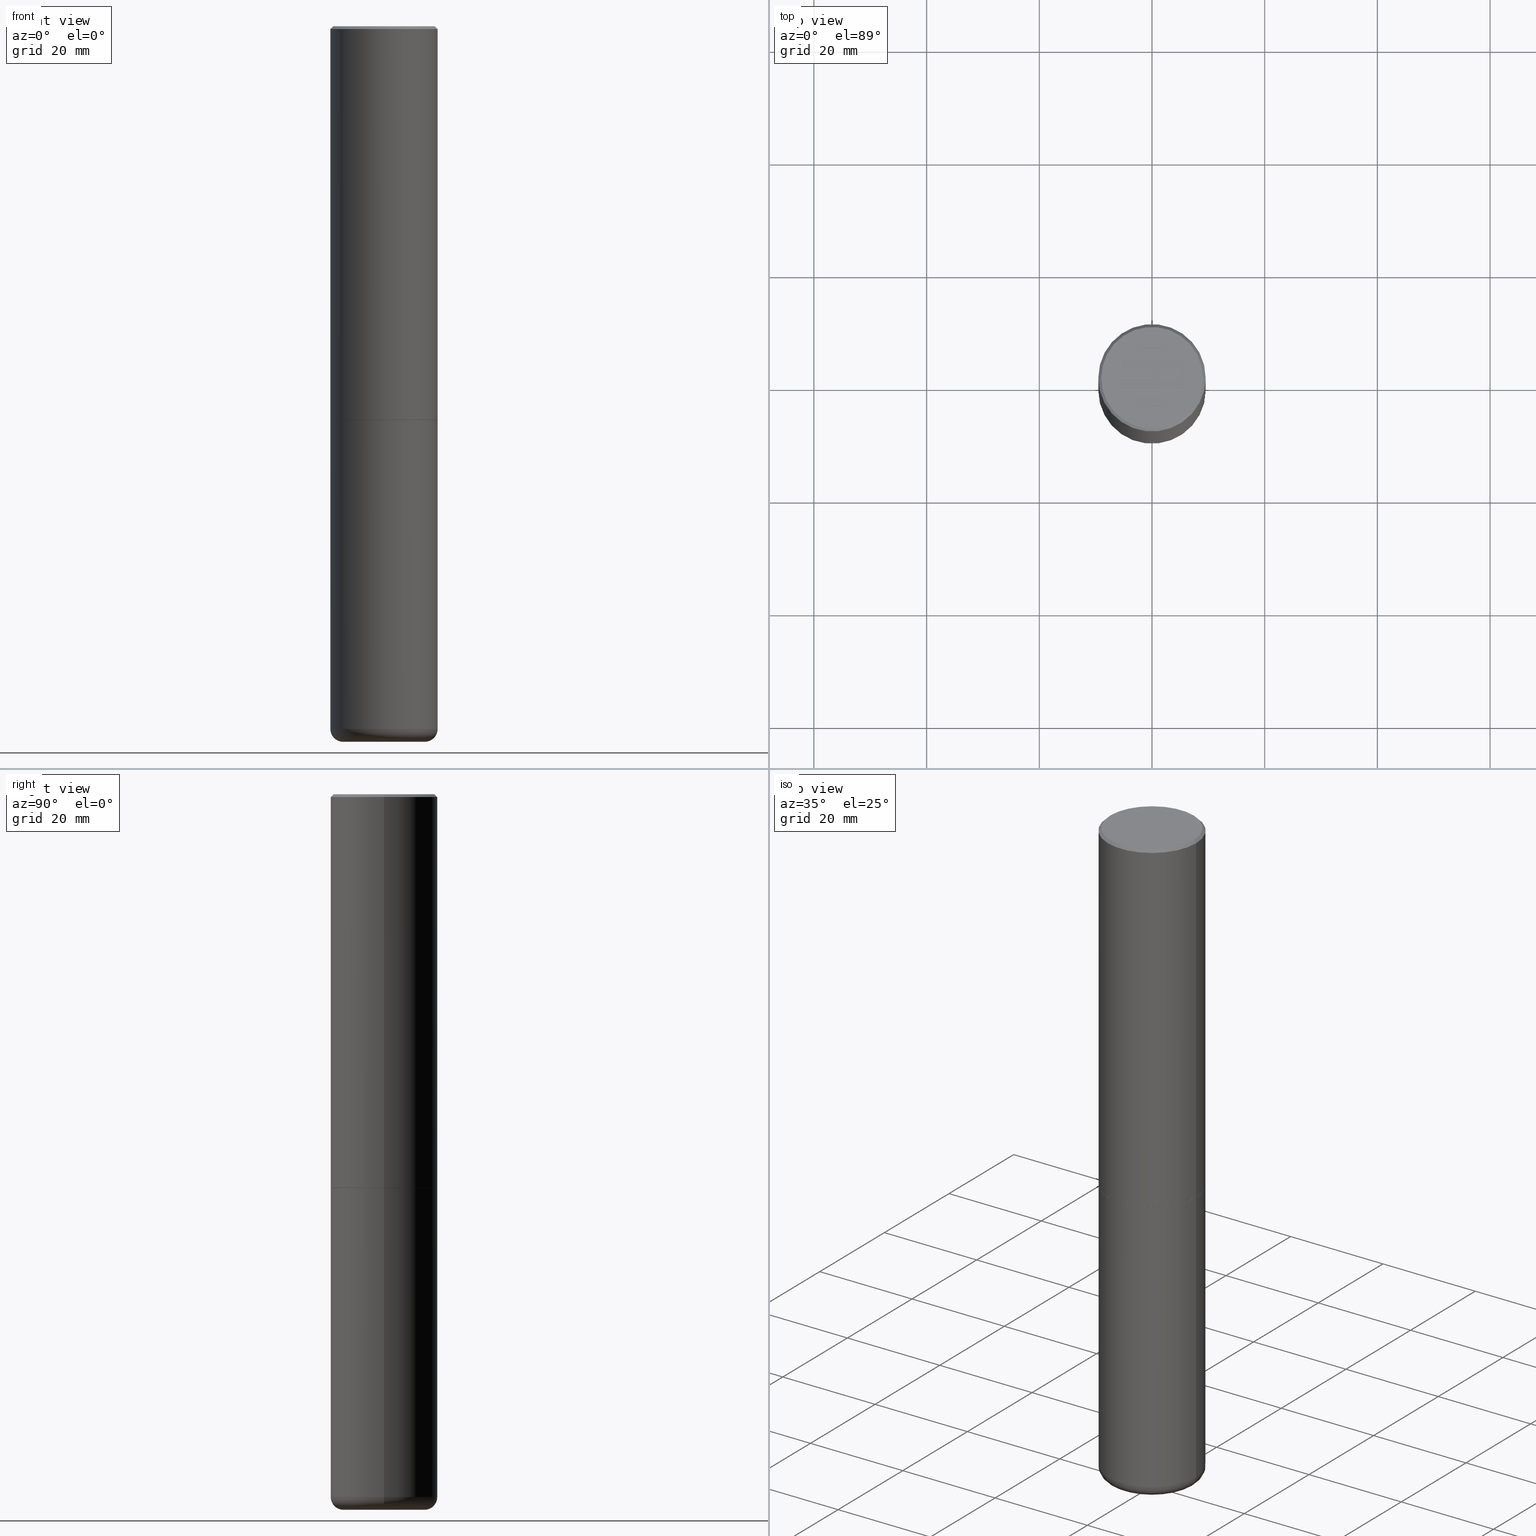
[diagram: canonical four-view strip — front | top / right | iso, engineering-drawing reading convention]
A machine part, canonical four-view strip (front | top / right | iso — engineering-drawing reading convention). The complete STEP part file that produces these views, byte-faithful:
ISO-10303-21;
HEADER;
FILE_DESCRIPTION (( 'STEP AP203' ),
    '1' );
FILE_NAME ('35637.STEP',
    '2022-11-02T20:32:36',
    ( '' ),
    ( '' ),
    'SwSTEP 2.0',
    'SolidWorks 2022',
    '' );
FILE_SCHEMA (( 'CONFIG_CONTROL_DESIGN' ));
ENDSEC;

DATA;
#1 = CARTESIAN_POINT ( 'NONE',  ( 6.725039217009123399E-29, -9.601573681818648281E-15, -2.749999999999999556 ) ) ;
#2 = EDGE_LOOP ( 'NONE', ( #62, #229, #119 ) ) ;
#3 = CARTESIAN_POINT ( 'NONE',  ( 0.3750000000000000555, -1.221669320461216002E-14, -2.749000000000000554 ) ) ;
#4 = ORIENTED_EDGE ( 'NONE', *, *, #420, .F. ) ;
#5 = CARTESIAN_POINT ( 'NONE',  ( -0.3750000000000000555, -1.070784425118986345E-14, -2.750000000000000000 ) ) ;
#6 = DIRECTION ( 'NONE',  ( 1.000000000000000000, -6.982962677686265133E-15, 0.000000000000000000 ) ) ;
#7 = ORIENTED_EDGE ( 'NONE', *, *, #10, .F. ) ;
#8 = CARTESIAN_POINT ( 'NONE',  ( 0.3749999999999995559, -2.618611004132346467E-15, 1.828566290923473680E-29 ) ) ;
#9 = CIRCLE ( 'NONE', #363, 0.3750000000000000555 ) ;
#10 = EDGE_CURVE ( 'NONE', #327, #192, #187, .T. ) ;
#11 = CARTESIAN_POINT ( 'NONE',  ( 0.000000000000000000, 0.000000000000000000, 0.000000000000000000 ) ) ;
#12 = CARTESIAN_POINT ( 'NONE',  ( 0.000000000000000000, 0.000000000000000000, 0.000000000000000000 ) ) ;
#13 = APPROVAL ( #221, 'UNSPECIFIED' ) ;
#14 = FACE_OUTER_BOUND ( 'NONE', #373, .T. ) ;
#15 = VERTEX_POINT ( 'NONE', #27 ) ;
#16 = DIRECTION ( 'NONE',  ( 1.000000000000000000, -6.982962677686265133E-15, 4.876231632512000515E-29 ) ) ;
#17 = ORIENTED_EDGE ( 'NONE', *, *, #23, .T. ) ;
#18 = CC_DESIGN_PERSON_AND_ORGANIZATION_ASSIGNMENT ( #102, #343, ( #413 ) ) ;
#19 = ORIENTED_EDGE ( 'NONE', *, *, #149, .F. ) ;
#20 = CARTESIAN_POINT ( 'NONE',  ( 6.725039217009124520E-29, -9.601573681818649859E-15, -2.750000000000000000 ) ) ;
#21 = CARTESIAN_POINT ( 'NONE',  ( -1.043851414335219820E-46, 1.490343170380447200E-32, 4.268512490100411279E-18 ) ) ;
#22 = CIRCLE ( 'NONE', #50, 0.3749999999999991673 ) ;
#23 = EDGE_CURVE ( 'NONE', #192, #327, #435, .T. ) ;
#24 = DIRECTION ( 'NONE',  ( 1.000000000000000000, -6.982962677686265133E-15, 4.883557194083112340E-29 ) ) ;
#25 =( NAMED_UNIT ( * ) SI_UNIT ( $, .STERADIAN. ) SOLID_ANGLE_UNIT ( ) );
#26 = EDGE_CURVE ( 'NONE', #15, #180, #349, .T. ) ;
#27 = CARTESIAN_POINT ( 'NONE',  ( -0.3549999999999990941, 2.513866563967049153E-15, 4.268512490082953109E-18 ) ) ;
#28 = CIRCLE ( 'NONE', #383, 0.2842146118051471215 ) ;
#29 = CIRCLE ( 'NONE', #369, 0.3749999999999991673 ) ;
#30 = ORIENTED_EDGE ( 'NONE', *, *, #348, .F. ) ;
#31 = ADVANCED_FACE ( 'NONE', ( #188 ), #265, .F. ) ;
#32 = DIRECTION ( 'NONE',  ( 1.000000000000000000, -6.982962677686266711E-15, 0.000000000000000000 ) ) ;
#33 = DIRECTION ( 'NONE',  ( -1.000000000000000000, 6.982962677686265922E-15, 0.000000000000000000 ) ) ;
#34 = SHAPE_DEFINITION_REPRESENTATION ( #69, #154 ) ;
#35 = CARTESIAN_POINT ( 'NONE',  ( -0.2442171118051470746, -1.575082900556077654E-14, -4.999650947105539700 ) ) ;
#36 = EDGE_CURVE ( 'NONE', #134, #253, #128, .T. ) ;
#37 = APPLICATION_CONTEXT ( 'configuration controlled 3d designs of mechanical parts and assemblies' ) ;
#38 = AXIS2_PLACEMENT_3D ( 'NONE', #337, #113, #115 ) ;
#39 = EDGE_CURVE ( 'NONE', #425, #98, #28, .T. ) ;
#40 = AXIS2_PLACEMENT_3D ( 'NONE', #399, #352, #312 ) ;
#41 = LOCAL_TIME ( 16, 32, 36.00000000000000000, #446 ) ;
#42 = ORIENTED_EDGE ( 'NONE', *, *, #126, .T. ) ;
#43 = APPROVAL ( #108, 'UNSPECIFIED' ) ;
#44 = ADVANCED_FACE ( 'NONE', ( #145 ), #302, .F. ) ;
#45 = FACE_OUTER_BOUND ( 'NONE', #473, .T. ) ;
#46 = EDGE_LOOP ( 'NONE', ( #173, #249 ) ) ;
#47 = DIRECTION ( 'NONE',  ( -2.445468806185136597E-29, 3.491481338843145583E-15, 1.000000000000000000 ) ) ;
#48 = CYLINDRICAL_SURFACE ( 'NONE', #57, 0.3750000000000000555 ) ;
#49 = DIRECTION ( 'NONE',  ( 1.000000000000000000, -6.982962677686266711E-15, 0.000000000000000000 ) ) ;
#50 = AXIS2_PLACEMENT_3D ( 'NONE', #203, #47, #49 ) ;
#51 = APPROVAL_PERSON_ORGANIZATION ( #93, #172, #177 ) ;
#52 = ORIENTED_EDGE ( 'NONE', *, *, #126, .F. ) ;
#53 = DIRECTION ( 'NONE',  ( -2.445468806185136877E-29, 3.491481338843145188E-15, 1.000000000000000000 ) ) ;
#54 = DIRECTION ( 'NONE',  ( 1.000000000000000000, -6.982962677686266711E-15, 0.000000000000000000 ) ) ;
#55 = ORIENTED_EDGE ( 'NONE', *, *, #36, .T. ) ;
#56 = DIRECTION ( 'NONE',  ( -2.445468806185136597E-29, 3.491481338843145583E-15, 1.000000000000000000 ) ) ;
#57 = AXIS2_PLACEMENT_3D ( 'NONE', #355, #84, #103 ) ;
#58 = ORIENTED_EDGE ( 'NONE', *, *, #131, .T. ) ;
#59 = CC_DESIGN_APPROVAL ( #13, ( #413 ) ) ;
#60 = DIRECTION ( 'NONE',  ( 2.445468806185136597E-29, -3.491481338843145583E-15, -1.000000000000000000 ) ) ;
#61 = ORIENTED_EDGE ( 'NONE', *, *, #26, .F. ) ;
#62 = ORIENTED_EDGE ( 'NONE', *, *, #283, .F. ) ;
#63 = ORIENTED_EDGE ( 'NONE', *, *, #36, .F. ) ;
#64 = CONICAL_SURFACE ( 'NONE', #266, 0.3749999999999991673, 0.7853981633974445042 ) ;
#65 = CALENDAR_DATE ( 2022, 2, 11 ) ;
#66 = ORIENTED_EDGE ( 'NONE', *, *, #449, .T. ) ;
#67 = TOROIDAL_SURFACE ( 'NONE', #372, 0.2850000000000003086, 0.08999999999999984401 ) ;
#68 = DIRECTION ( 'NONE',  ( -1.000000000000000000, 6.982962677686266711E-15, 0.000000000000000000 ) ) ;
#69 = PRODUCT_DEFINITION_SHAPE ( 'NONE', 'NONE',  #269 ) ;
#70 = COORDINATED_UNIVERSAL_TIME_OFFSET ( 5, 0, .BEHIND. ) ;
#71 = DIRECTION ( 'NONE',  ( 0.000000000000000000, 0.000000000000000000, 1.000000000000000000 ) ) ;
#72 = VERTEX_POINT ( 'NONE', #5 ) ;
#73 = DIRECTION ( 'NONE',  ( 1.000000000000000000, -6.982962677686265133E-15, 4.883557194083112340E-29 ) ) ;
#74 = CC_DESIGN_PERSON_AND_ORGANIZATION_ASSIGNMENT ( #482, #144, ( #269 ) ) ;
#75 = CONICAL_SURFACE ( 'NONE', #405, 0.3739999999999999991, 0.7853981633980972044 ) ;
#76 = LOCAL_TIME ( 16, 32, 36.00000000000000000, #136 ) ;
#77 = CARTESIAN_POINT ( 'NONE',  ( 6.725039217009123399E-29, -9.601573681818648281E-15, -2.749999999999999556 ) ) ;
#78 = DIRECTION ( 'NONE',  ( -2.445468806185136597E-29, 3.491481338843145583E-15, 1.000000000000000000 ) ) ;
#79 = LINE ( 'NONE', #124, #412 ) ;
#80 = LINE ( 'NONE', #464, #491 ) ;
#81 = VERTEX_POINT ( 'NONE', #201 ) ;
#82 = DIRECTION ( 'NONE',  ( 7.105427357601001859E-15, 1.000000000000000000, -3.491481338843145583E-15 ) ) ;
#83 = EDGE_CURVE ( 'NONE', #256, #439, #318, .T. ) ;
#84 = DIRECTION ( 'NONE',  ( -2.445468806185136597E-29, 3.491481338843145583E-15, 1.000000000000000000 ) ) ;
#85 = CLOSED_SHELL ( 'NONE', ( #305, #117, #230, #257, #298, #213, #444, #365 ) ) ;
#86 = AXIS2_PLACEMENT_3D ( 'NONE', #240, #82, #391 ) ;
#87 = CARTESIAN_POINT ( 'NONE',  ( -0.3750000000000000555, -2.169420654527954251E-15, -2.749000000000000554 ) ) ;
#88 = AXIS2_PLACEMENT_3D ( 'NONE', #278, #426, #73 ) ;
#89 =( GEOMETRIC_REPRESENTATION_CONTEXT ( 3 ) GLOBAL_UNCERTAINTY_ASSIGNED_CONTEXT ( ( #332 ) ) GLOBAL_UNIT_ASSIGNED_CONTEXT ( ( #184, #301, #25 ) ) REPRESENTATION_CONTEXT ( 'NONE', 'WORKASPACE' ) );
#90 = EDGE_CURVE ( 'NONE', #81, #98, #434, .T. ) ;
#91 = FACE_OUTER_BOUND ( 'NONE', #160, .T. ) ;
#92 = CARTESIAN_POINT ( 'NONE',  ( -0.3750000000000000555, -1.070784425118986345E-14, -4.910003426924224534 ) ) ;
#93 = PERSON_AND_ORGANIZATION ( #371, #370 ) ;
#94 = ORIENTED_EDGE ( 'NONE', *, *, #83, .T. ) ;
#95 = ORIENTED_EDGE ( 'NONE', *, *, #131, .F. ) ;
#96 = AXIS2_PLACEMENT_3D ( 'NONE', #469, #163, #244 ) ;
#97 = CC_DESIGN_SECURITY_CLASSIFICATION ( #317, ( #413 ) ) ;
#98 = VERTEX_POINT ( 'NONE', #431 ) ;
#99 = CARTESIAN_POINT ( 'NONE',  ( 0.3750000000000000555, -1.222018468595100145E-14, -2.750000000000000000 ) ) ;
#100 = DIRECTION ( 'NONE',  ( 2.438088387897960049E-29, -3.491481338843145188E-15, -1.000000000000000000 ) ) ;
#101 = ORIENTED_EDGE ( 'NONE', *, *, #449, .F. ) ;
#102 = PERSON_AND_ORGANIZATION ( #371, #370 ) ;
#103 = DIRECTION ( 'NONE',  ( 1.000000000000000000, -6.982962677686265922E-15, 4.876176775795935793E-29 ) ) ;
#104 = AXIS2_PLACEMENT_3D ( 'NONE', #159, #277, #483 ) ;
#105 = AXIS2_PLACEMENT_3D ( 'NONE', #200, #118, #33 ) ;
#106 = DIRECTION ( 'NONE',  ( 2.438088387897960049E-29, -3.491481338843145188E-15, -1.000000000000000000 ) ) ;
#107 = MECHANICAL_CONTEXT ( 'NONE', #484, 'mechanical' ) ;
#108 = APPROVAL_STATUS ( 'not_yet_approved' ) ;
#109 = FACE_OUTER_BOUND ( 'NONE', #351, .T. ) ;
#110 = VECTOR ( 'NONE', #114, 39.37007874015748854 ) ;
#111 = DIRECTION ( 'NONE',  ( -2.445468806185136597E-29, 3.491481338843145583E-15, 1.000000000000000000 ) ) ;
#112 = EDGE_CURVE ( 'NONE', #327, #134, #389, .T. ) ;
#113 = DIRECTION ( 'NONE',  ( 2.445468806185136597E-29, -3.491481338843145583E-15, -1.000000000000000000 ) ) ;
#114 = DIRECTION ( 'NONE',  ( -0.9993908270190957621, 6.856857904024568303E-15, -0.03489949670249774261 ) ) ;
#115 = DIRECTION ( 'NONE',  ( -1.000000000000000000, 6.982962677686265922E-15, 0.000000000000000000 ) ) ;
#116 = FACE_OUTER_BOUND ( 'NONE', #259, .T. ) ;
#117 = ADVANCED_FACE ( 'NONE', ( #247 ), #281, .T. ) ;
#118 = DIRECTION ( 'NONE',  ( 2.445468806185136597E-29, -3.491481338843145583E-15, -1.000000000000000000 ) ) ;
#119 = ORIENTED_EDGE ( 'NONE', *, *, #407, .F. ) ;
#120 = CIRCLE ( 'NONE', #437, 0.2442171118051470746 ) ;
#121 = DIRECTION ( 'NONE',  ( 1.000000000000000000, -6.982962677686266711E-15, 0.000000000000000000 ) ) ;
#122 = CARTESIAN_POINT ( 'NONE',  ( 0.2850000000000003086, -1.913332970190241034E-14, -4.910003426924224534 ) ) ;
#123 = EDGE_CURVE ( 'NONE', #171, #72, #354, .T. ) ;
#124 = CARTESIAN_POINT ( 'NONE',  ( 0.3739999999999999991, -1.221320172327331228E-14, -2.749999999999999556 ) ) ;
#125 = CARTESIAN_POINT ( 'NONE',  ( -0.3739999999999999991, -6.944143850075873593E-15, -2.749999999999999556 ) ) ;
#126 = EDGE_CURVE ( 'NONE', #171, #256, #356, .T. ) ;
#127 = CARTESIAN_POINT ( 'NONE',  ( 1.222734403092568523E-28, -1.745740669421572989E-14, -5.000000000000000000 ) ) ;
#128 = CIRCLE ( 'NONE', #104, 0.3750000000000000555 ) ;
#129 = CARTESIAN_POINT ( 'NONE',  ( 1.220563486491695701E-28, -1.742641175868041910E-14, -4.991122697638252781 ) ) ;
#130 = DIRECTION ( 'NONE',  ( -2.445468806185136597E-29, 3.491481338843145583E-15, 1.000000000000000000 ) ) ;
#131 = EDGE_CURVE ( 'NONE', #253, #386, #463, .T. ) ;
#132 = CONICAL_SURFACE ( 'NONE', #470, 0.3739999999999999991, 0.7853981633980972044 ) ;
#133 = CALENDAR_DATE ( 2022, 2, 11 ) ;
#134 = VERTEX_POINT ( 'NONE', #87 ) ;
#135 = CC_DESIGN_PERSON_AND_ORGANIZATION_ASSIGNMENT ( #342, #423, ( #447 ) ) ;
#136 = COORDINATED_UNIVERSAL_TIME_OFFSET ( 5, 0, .BEHIND. ) ;
#137 = DIRECTION ( 'NONE',  ( -2.438088387897960049E-29, 3.491481338843145188E-15, 1.000000000000000000 ) ) ;
#138 = FACE_OUTER_BOUND ( 'NONE', #46, .T. ) ;
#139 = APPROVAL_DATE_TIME ( #334, #43 ) ;
#140 = DIRECTION ( 'NONE',  ( 0.7071067811865447972, -7.319954787623245001E-15, -0.7071067811865501263 ) ) ;
#141 = AXIS2_PLACEMENT_3D ( 'NONE', #448, #106, #339 ) ;
#142 = AXIS2_PLACEMENT_3D ( 'NONE', #176, #100, #367 ) ;
#143 = CIRCLE ( 'NONE', #197, 0.3750000000000000555 ) ;
#144 = PERSON_AND_ORGANIZATION_ROLE ( 'creator' ) ;
#145 = FACE_OUTER_BOUND ( 'NONE', #296, .T. ) ;
#146 = DIRECTION ( 'NONE',  ( -1.000000000000000000, 6.982962677686266711E-15, 0.000000000000000000 ) ) ;
#147 = ADVANCED_FACE ( 'NONE', ( #162 ), #237, .F. ) ;
#148 = VERTEX_POINT ( 'NONE', #129 ) ;
#149 = EDGE_CURVE ( 'NONE', #190, #425, #459, .T. ) ;
#150 = CALENDAR_DATE ( 2022, 2, 11 ) ;
#151 = CARTESIAN_POINT ( 'NONE',  ( -0.3749999999999991673, 2.548781377355480407E-15, -0.02000000000000020858 ) ) ;
#152 = APPLICATION_PROTOCOL_DEFINITION ( 'international standard', 'config_control_design', 1994, #37 ) ;
#153 = VECTOR ( 'NONE', #359, 39.37007874015748143 ) ;
#154 = ADVANCED_BREP_SHAPE_REPRESENTATION ( '35637', ( #485, #326, #387 ), #89 ) ;
#155 = PERSON_AND_ORGANIZATION_ROLE ( 'classification_officer' ) ;
#156 = EDGE_CURVE ( 'NONE', #192, #253, #79, .T. ) ;
#157 = ORIENTED_EDGE ( 'NONE', *, *, #23, .F. ) ;
#158 = DIRECTION ( 'NONE',  ( 0.9993908270190957621, -6.978169709227530444E-15, -0.03489949670249774261 ) ) ;
#159 = CARTESIAN_POINT ( 'NONE',  ( 6.722593748202942280E-29, -9.598082200479810007E-15, -2.749000000000000554 ) ) ;
#160 = EDGE_LOOP ( 'NONE', ( #157, #7 ) ) ;
#161 = DIRECTION ( 'NONE',  ( 1.000000000000000000, -6.982962677686265922E-15, 0.000000000000000000 ) ) ;
#162 = FACE_OUTER_BOUND ( 'NONE', #287, .T. ) ;
#163 = DIRECTION ( 'NONE',  ( -2.445468806185136597E-29, 3.491481338843145583E-15, 1.000000000000000000 ) ) ;
#164 = EDGE_CURVE ( 'NONE', #98, #171, #336, .T. ) ;
#165 = CIRCLE ( 'NONE', #442, 0.2442171118051470746 ) ;
#166 = DIRECTION ( 'NONE',  ( -2.445468806185136597E-29, 3.491481338843145583E-15, 1.000000000000000000 ) ) ;
#167 = DIRECTION ( 'NONE',  ( -2.445468806185136597E-29, 3.491481338843145583E-15, 1.000000000000000000 ) ) ;
#168 = CC_DESIGN_PERSON_AND_ORGANIZATION_ASSIGNMENT ( #233, #155, ( #317 ) ) ;
#169 = DIRECTION ( 'NONE',  ( -2.445468806185136597E-29, 3.491481338843145583E-15, 1.000000000000000000 ) ) ;
#170 = CARTESIAN_POINT ( 'NONE',  ( -0.2842146118051471215, -1.547274666752729521E-14, -5.000000000000000000 ) ) ;
#171 = VERTEX_POINT ( 'NONE', #92 ) ;
#172 = APPROVAL ( #415, 'UNSPECIFIED' ) ;
#173 = ORIENTED_EDGE ( 'NONE', *, *, #319, .T. ) ;
#174 = DIRECTION ( 'NONE',  ( -2.445468806185136597E-29, 3.491481338843145583E-15, 1.000000000000000000 ) ) ;
#175 = CARTESIAN_POINT ( 'NONE',  ( 0.2842146118051471215, -1.944206672090416141E-14, -5.000000000000000000 ) ) ;
#176 = CARTESIAN_POINT ( 'NONE',  ( 2.478951750578617898E-15, 0.3549999999999990941, -1.237341619044263272E-15 ) ) ;
#177 = APPROVAL_ROLE ( '' ) ;
#178 = FACE_OUTER_BOUND ( 'NONE', #279, .T. ) ;
#179 = EDGE_CURVE ( 'NONE', #386, #180, #22, .T. ) ;
#180 = VERTEX_POINT ( 'NONE', #206 ) ;
#181 = CARTESIAN_POINT ( 'NONE',  ( 0.3749999999999991673, -2.642516375941182112E-15, -0.02000000000000020858 ) ) ;
#182 = CONICAL_SURFACE ( 'NONE', #306, 0.3749999999999991673, 0.7853981633974445042 ) ;
#183 = CC_DESIGN_APPROVAL ( #172, ( #269 ) ) ;
#184 =( CONVERSION_BASED_UNIT ( 'INCH', #416 ) LENGTH_UNIT ( ) NAMED_UNIT ( #384 ) );
#185 = PERSON_AND_ORGANIZATION ( #371, #370 ) ;
#186 = DIRECTION ( 'NONE',  ( 1.000000000000000000, -6.982962677686265922E-15, 4.876176775795935793E-29 ) ) ;
#187 = CIRCLE ( 'NONE', #490, 0.3739999999999999991 ) ;
#188 = FACE_OUTER_BOUND ( 'NONE', #2, .T. ) ;
#189 = CIRCLE ( 'NONE', #396, 0.3549999999999990941 ) ;
#190 = VERTEX_POINT ( 'NONE', #280 ) ;
#191 = CARTESIAN_POINT ( 'NONE',  ( 0.3750000000000000555, -1.976179634289417687E-14, -4.910003426924224534 ) ) ;
#192 = VERTEX_POINT ( 'NONE', #430 ) ;
#193 = DIRECTION ( 'NONE',  ( 1.000000000000000000, -6.982962677686265133E-15, 0.000000000000000000 ) ) ;
#194 = CALENDAR_DATE ( 2022, 2, 11 ) ;
#195 = ORIENTED_EDGE ( 'NONE', *, *, #328, .T. ) ;
#196 = CARTESIAN_POINT ( 'NONE',  ( 0.000000000000000000, 0.000000000000000000, 0.000000000000000000 ) ) ;
#197 = AXIS2_PLACEMENT_3D ( 'NONE', #403, #174, #121 ) ;
#198 = DIRECTION ( 'NONE',  ( -2.445468806185136597E-29, 3.491481338843145583E-15, 1.000000000000000000 ) ) ;
#199 = DIRECTION ( 'NONE',  ( 2.445468806185136597E-29, -3.491481338843145583E-15, -1.000000000000000000 ) ) ;
#200 = CARTESIAN_POINT ( 'NONE',  ( 1.222649043296057309E-28, -1.745618798254845354E-14, -4.999650947105539700 ) ) ;
#201 = CARTESIAN_POINT ( 'NONE',  ( -0.2442171118051470746, -1.575082900556077654E-14, -4.999650947105539700 ) ) ;
#202 = ORIENTED_EDGE ( 'NONE', *, *, #112, .F. ) ;
#203 = CARTESIAN_POINT ( 'NONE',  ( 4.890937612370324831E-31, -6.982962677686364332E-17, -0.02000000000000020858 ) ) ;
#204 = DIRECTION ( 'NONE',  ( -1.000000000000000000, 6.982962677686267499E-15, 0.000000000000000000 ) ) ;
#205 = AXIS2_PLACEMENT_3D ( 'NONE', #196, #388, #227 ) ;
#206 = CARTESIAN_POINT ( 'NONE',  ( -0.3749999999999991673, 2.548781377355480407E-15, -0.02000000000000020858 ) ) ;
#207 = CARTESIAN_POINT ( 'NONE',  ( 4.890937612370324831E-31, -6.982962677686364332E-17, -0.02000000000000020858 ) ) ;
#208 = CARTESIAN_POINT ( 'NONE',  ( 0.3750000000000000555, -2.618611004132350016E-15, 1.828566290923476203E-29 ) ) ;
#209 = ORIENTED_EDGE ( 'NONE', *, *, #156, .T. ) ;
#210 = ORIENTED_EDGE ( 'NONE', *, *, #407, .T. ) ;
#211 = TOROIDAL_SURFACE ( 'NONE', #88, 0.2850000000000003086, 0.08999999999999984401 ) ;
#212 = CC_DESIGN_APPROVAL ( #43, ( #317 ) ) ;
#213 = ADVANCED_FACE ( 'NONE', ( #228 ), #132, .T. ) ;
#214 = EDGE_LOOP ( 'NONE', ( #66, #245, #324, #310 ) ) ;
#215 = DIRECTION ( 'NONE',  ( 1.000000000000000000, -6.982962677686266711E-15, 0.000000000000000000 ) ) ;
#216 = ADVANCED_FACE ( 'NONE', ( #45 ), #299, .F. ) ;
#217 = ORIENTED_EDGE ( 'NONE', *, *, #156, .F. ) ;
#218 = ORIENTED_EDGE ( 'NONE', *, *, #382, .F. ) ;
#219 = AXIS2_PLACEMENT_3D ( 'NONE', #374, #274, #32 ) ;
#220 = LOCAL_TIME ( 16, 32, 36.00000000000000000, #70 ) ;
#221 = APPROVAL_STATUS ( 'not_yet_approved' ) ;
#222 = APPROVAL_ROLE ( '' ) ;
#223 = EDGE_CURVE ( 'NONE', #180, #386, #29, .T. ) ;
#224 = CARTESIAN_POINT ( 'NONE',  ( 0.2442171118051470746, -1.913163898910920839E-14, -4.999650947105539700 ) ) ;
#225 = ORIENTED_EDGE ( 'NONE', *, *, #123, .F. ) ;
#226 = VECTOR ( 'NONE', #158, 39.37007874015748854 ) ;
#227 = DIRECTION ( 'NONE',  ( 1.000000000000000000, -6.982962677686265922E-15, 4.876176775795935793E-29 ) ) ;
#228 = FACE_OUTER_BOUND ( 'NONE', #377, .T. ) ;
#229 = ORIENTED_EDGE ( 'NONE', *, *, #263, .T. ) ;
#230 = ADVANCED_FACE ( 'NONE', ( #178 ), #182, .T. ) ;
#231 = LINE ( 'NONE', #35, #110 ) ;
#232 = FACE_OUTER_BOUND ( 'NONE', #214, .T. ) ;
#233 = PERSON_AND_ORGANIZATION ( #371, #370 ) ;
#234 = ORIENTED_EDGE ( 'NONE', *, *, #254, .T. ) ;
#235 = DIRECTION ( 'NONE',  ( -2.445468806185136597E-29, 3.491481338843145583E-15, 1.000000000000000000 ) ) ;
#236 = CARTESIAN_POINT ( 'NONE',  ( 0.3549999999999990941, -2.538996582575035132E-15, 4.268512490117958041E-18 ) ) ;
#237 = CONICAL_SURFACE ( 'NONE', #40, 0.2842146118051471215, 1.562069680534943661 ) ;
#238 = APPROVAL_DATE_TIME ( #456, #172 ) ;
#239 = ORIENTED_EDGE ( 'NONE', *, *, #123, .T. ) ;
#240 = CARTESIAN_POINT ( 'NONE',  ( -0.2850000000000003086, -1.511813854184553716E-14, -4.910003426924224534 ) ) ;
#241 = DIRECTION ( 'NONE',  ( -2.445468806185136877E-29, 3.491481338843145188E-15, 1.000000000000000000 ) ) ;
#242 = ORIENTED_EDGE ( 'NONE', *, *, #254, .F. ) ;
#243 = DIRECTION ( 'NONE',  ( -0.7071067811870063169, 7.493145998872012346E-15, 0.7071067811860887176 ) ) ;
#244 = DIRECTION ( 'NONE',  ( 1.000000000000000000, -6.982962677686266711E-15, 0.000000000000000000 ) ) ;
#245 = ORIENTED_EDGE ( 'NONE', *, *, #149, .T. ) ;
#246 = LOCAL_TIME ( 16, 32, 36.00000000000000000, #272 ) ;
#247 = FACE_OUTER_BOUND ( 'NONE', #471, .T. ) ;
#248 = ADVANCED_FACE ( 'NONE', ( #489 ), #350, .T. ) ;
#249 = ORIENTED_EDGE ( 'NONE', *, *, #381, .T. ) ;
#250 = PLANE ( 'NONE',  #397 ) ;
#251 = DIRECTION ( 'NONE',  ( -2.445468806185136597E-29, 3.491481338843145583E-15, 1.000000000000000000 ) ) ;
#252 = ORIENTED_EDGE ( 'NONE', *, *, #307, .T. ) ;
#253 = VERTEX_POINT ( 'NONE', #3 ) ;
#254 = EDGE_CURVE ( 'NONE', #439, #72, #329, .T. ) ;
#255 = PLANE ( 'NONE',  #142 ) ;
#256 = VERTEX_POINT ( 'NONE', #191 ) ;
#257 = ADVANCED_FACE ( 'NONE', ( #109 ), #64, .T. ) ;
#258 = VECTOR ( 'NONE', #243, 39.37007874015748143 ) ;
#259 = EDGE_LOOP ( 'NONE', ( #30, #55, #58, #393 ) ) ;
#260 = CARTESIAN_POINT ( 'NONE',  ( 0.3749999999999991673, -2.642516375941182112E-15, -0.02000000000000020858 ) ) ;
#261 = ORIENTED_EDGE ( 'NONE', *, *, #283, .T. ) ;
#262 = CARTESIAN_POINT ( 'NONE',  ( 1.222649043296057309E-28, -1.745618798254845354E-14, -4.999650947105539700 ) ) ;
#263 = EDGE_CURVE ( 'NONE', #148, #81, #231, .T. ) ;
#264 = CARTESIAN_POINT ( 'NONE',  ( 1.222649043296057309E-28, -1.745618798254845354E-14, -4.999650947105539700 ) ) ;
#265 = CONICAL_SURFACE ( 'NONE', #38, 0.2442171118051470746, 1.535889741755013249 ) ;
#266 = AXIS2_PLACEMENT_3D ( 'NONE', #311, #422, #68 ) ;
#267 = DATE_AND_TIME ( #150, #41 ) ;
#268 = APPROVAL_PERSON_ORGANIZATION ( #450, #43, #379 ) ;
#269 = PRODUCT_DEFINITION ( 'UNKNOWN', '', #413, #313 ) ;
#270 = SECURITY_CLASSIFICATION_LEVEL ( 'unclassified' ) ;
#271 = DATE_TIME_ROLE ( 'classification_date' ) ;
#272 = COORDINATED_UNIVERSAL_TIME_OFFSET ( 5, 0, .BEHIND. ) ;
#273 = CIRCLE ( 'NONE', #481, 0.08999999999999985789 ) ;
#274 = DIRECTION ( 'NONE',  ( -2.445468806185136597E-29, 3.491481338843145583E-15, 1.000000000000000000 ) ) ;
#275 = PERSON_AND_ORGANIZATION ( #371, #370 ) ;
#276 = CARTESIAN_POINT ( 'NONE',  ( 1.222734403092568523E-28, -1.745740669421572989E-14, -5.000000000000000000 ) ) ;
#277 = DIRECTION ( 'NONE',  ( -2.445468806185136597E-29, 3.491481338843145583E-15, 1.000000000000000000 ) ) ;
#278 = CARTESIAN_POINT ( 'NONE',  ( 1.200726021880531330E-28, -1.714318533876182370E-14, -4.910003426924224534 ) ) ;
#279 = EDGE_LOOP ( 'NONE', ( #457, #398, #353, #61 ) ) ;
#280 = CARTESIAN_POINT ( 'NONE',  ( 0.2442171118051470746, -1.913163898910920839E-14, -4.999650947105539700 ) ) ;
#281 = CYLINDRICAL_SURFACE ( 'NONE', #454, 0.3749999999999995559 ) ;
#282 = DIRECTION ( 'NONE',  ( 1.000000000000000000, -6.982962677686279332E-15, 0.000000000000000000 ) ) ;
#283 = EDGE_CURVE ( 'NONE', #148, #190, #347, .T. ) ;
#284 = DIRECTION ( 'NONE',  ( -0.9999619230641714207, 6.952228252019235511E-15, -0.008726535498355246501 ) ) ;
#285 = CARTESIAN_POINT ( 'NONE',  ( -1.043851414335219820E-46, 1.490343170380447200E-32, 4.268512490100411279E-18 ) ) ;
#286 = DIRECTION ( 'NONE',  ( 1.000000000000000000, -6.982962677686265133E-15, 4.876176775795935793E-29 ) ) ;
#287 = EDGE_LOOP ( 'NONE', ( #19, #210, #325, #441 ) ) ;
#288 = AXIS2_PLACEMENT_3D ( 'NONE', #418, #198, #341 ) ;
#289 = DIRECTION ( 'NONE',  ( 0.9999619230641714207, -6.890705306874777996E-15, -0.008726535498355246501 ) ) ;
#290 = DIRECTION ( 'NONE',  ( -2.445468806185136597E-29, 3.491481338843145583E-15, 1.000000000000000000 ) ) ;
#291 = CARTESIAN_POINT ( 'NONE',  ( 6.725039217009123399E-29, -9.601573681818648281E-15, -2.749999999999999556 ) ) ;
#292 = ADVANCED_FACE ( 'NONE', ( #309 ), #211, .T. ) ;
#293 = VERTEX_POINT ( 'NONE', #236 ) ;
#294 = CARTESIAN_POINT ( 'NONE',  ( 1.200726021880531330E-28, -1.714318533876182370E-14, -4.910003426924224534 ) ) ;
#295 = VECTOR ( 'NONE', #322, 39.37007874015748143 ) ;
#296 = EDGE_LOOP ( 'NONE', ( #234, #252 ) ) ;
#297 = ORIENTED_EDGE ( 'NONE', *, *, #409, .F. ) ;
#298 = ADVANCED_FACE ( 'NONE', ( #116 ), #358, .T. ) ;
#299 = CONICAL_SURFACE ( 'NONE', #105, 0.2442171118051470746, 1.535889741755013249 ) ;
#300 = AXIS2_PLACEMENT_3D ( 'NONE', #378, #60, #204 ) ;
#301 =( NAMED_UNIT ( * ) PLANE_ANGLE_UNIT ( ) SI_UNIT ( $, .RADIAN. ) );
#302 = PLANE ( 'NONE',  #141 ) ;
#303 = PERSON_AND_ORGANIZATION_ROLE ( 'design_supplier' ) ;
#304 = DIRECTION ( 'NONE',  ( -2.445468806185136597E-29, 3.491481338843145583E-15, 1.000000000000000000 ) ) ;
#305 = ADVANCED_FACE ( 'NONE', ( #14 ), #75, .T. ) ;
#306 = AXIS2_PLACEMENT_3D ( 'NONE', #478, #199, #146 ) ;
#307 = EDGE_CURVE ( 'NONE', #72, #439, #323, .T. ) ;
#308 = DIRECTION ( 'NONE',  ( 1.000000000000000000, -6.982962677686265133E-15, 0.000000000000000000 ) ) ;
#309 = FACE_OUTER_BOUND ( 'NONE', #421, .T. ) ;
#310 = ORIENTED_EDGE ( 'NONE', *, *, #90, .F. ) ;
#311 = CARTESIAN_POINT ( 'NONE',  ( 4.890937612370324831E-31, -6.982962677686364332E-17, -0.02000000000000020858 ) ) ;
#312 = DIRECTION ( 'NONE',  ( -1.000000000000000000, 6.982962677686267499E-15, 0.000000000000000000 ) ) ;
#313 = DESIGN_CONTEXT ( 'detailed design', #37, 'design' ) ;
#314 = DIRECTION ( 'NONE',  ( 1.000000000000000000, -6.982962677686265133E-15, 4.876231632512000515E-29 ) ) ;
#315 = VECTOR ( 'NONE', #53, 39.37007874015748143 ) ;
#316 = AXIS2_PLACEMENT_3D ( 'NONE', #12, #167, #321 ) ;
#317 = SECURITY_CLASSIFICATION ( '', '', #270 ) ;
#318 = LINE ( 'NONE', #208, #315 ) ;
#319 = EDGE_CURVE ( 'NONE', #15, #293, #345, .T. ) ;
#320 = CARTESIAN_POINT ( 'NONE',  ( 1.200726021880531330E-28, -1.714318533876182370E-14, -4.910003426924224534 ) ) ;
#321 = DIRECTION ( 'NONE',  ( 1.000000000000000000, -6.982962677686265133E-15, 4.876176775795935793E-29 ) ) ;
#322 = DIRECTION ( 'NONE',  ( -2.445468806185136877E-29, 3.491481338843145188E-15, 1.000000000000000000 ) ) ;
#323 = CIRCLE ( 'NONE', #96, 0.3750000000000000555 ) ;
#324 = ORIENTED_EDGE ( 'NONE', *, *, #328, .F. ) ;
#325 = ORIENTED_EDGE ( 'NONE', *, *, #90, .T. ) ;
#326 = MANIFOLD_SOLID_BREP ( 'Body-Move/Copy2[2]', #85 ) ;
#327 = VERTEX_POINT ( 'NONE', #466 ) ;
#328 = EDGE_CURVE ( 'NONE', #98, #425, #385, .T. ) ;
#329 = CIRCLE ( 'NONE', #219, 0.3750000000000000555 ) ;
#330 = LINE ( 'NONE', #260, #460 ) ;
#331 = EDGE_CURVE ( 'NONE', #425, #256, #273, .T. ) ;
#332 = UNCERTAINTY_MEASURE_WITH_UNIT (LENGTH_MEASURE( 1.000000000000000082E-05 ), #184, 'distance_accuracy_value', 'NONE');
#333 = DIRECTION ( 'NONE',  ( -2.445468806185136597E-29, 3.491481338843145583E-15, 1.000000000000000000 ) ) ;
#334 = DATE_AND_TIME ( #65, #246 ) ;
#335 = DIRECTION ( 'NONE',  ( 1.000000000000000000, -6.982962677686265922E-15, 0.000000000000000000 ) ) ;
#336 = CIRCLE ( 'NONE', #86, 0.08999999999999985789 ) ;
#337 = CARTESIAN_POINT ( 'NONE',  ( 1.222649043296057309E-28, -1.745618798254845354E-14, -4.999650947105539700 ) ) ;
#338 = APPLICATION_PROTOCOL_DEFINITION ( 'international standard', 'config_control_design', 1994, #484 ) ;
#339 = DIRECTION ( 'NONE',  ( -1.000000000000000000, 6.982962677686265922E-15, -4.876176775795935793E-29 ) ) ;
#340 = CARTESIAN_POINT ( 'NONE',  ( 0.000000000000000000, 0.000000000000000000, 0.000000000000000000 ) ) ;
#341 = DIRECTION ( 'NONE',  ( 1.000000000000000000, -6.982962677686265133E-15, 0.000000000000000000 ) ) ;
#342 = PERSON_AND_ORGANIZATION ( #371, #370 ) ;
#343 = PERSON_AND_ORGANIZATION_ROLE ( 'creator' ) ;
#344 = VECTOR ( 'NONE', #455, 39.37007874015748854 ) ;
#345 = CIRCLE ( 'NONE', #436, 0.3549999999999990941 ) ;
#346 = ORIENTED_EDGE ( 'NONE', *, *, #420, .T. ) ;
#347 = LINE ( 'NONE', #224, #226 ) ;
#348 = EDGE_CURVE ( 'NONE', #134, #180, #80, .T. ) ;
#349 = LINE ( 'NONE', #151, #344 ) ;
#350 = CYLINDRICAL_SURFACE ( 'NONE', #205, 0.3750000000000000555 ) ;
#351 = EDGE_LOOP ( 'NONE', ( #218, #408, #410, #406 ) ) ;
#352 = DIRECTION ( 'NONE',  ( 2.445468806185136597E-29, -3.491481338843145583E-15, -1.000000000000000000 ) ) ;
#353 = ORIENTED_EDGE ( 'NONE', *, *, #179, .T. ) ;
#354 = LINE ( 'NONE', #394, #295 ) ;
#355 = CARTESIAN_POINT ( 'NONE',  ( 0.000000000000000000, 0.000000000000000000, 0.000000000000000000 ) ) ;
#356 = CIRCLE ( 'NONE', #474, 0.3750000000000000555 ) ;
#357 = ORIENTED_EDGE ( 'NONE', *, *, #331, .F. ) ;
#358 = CYLINDRICAL_SURFACE ( 'NONE', #316, 0.3749999999999995559 ) ;
#359 = DIRECTION ( 'NONE',  ( -2.445468806185136877E-29, 3.491481338843145188E-15, 1.000000000000000000 ) ) ;
#360 = ADVANCED_FACE ( 'NONE', ( #392 ), #48, .T. ) ;
#361 = AXIS2_PLACEMENT_3D ( 'NONE', #127, #251, #462 ) ;
#362 = ORIENTED_EDGE ( 'NONE', *, *, #348, .T. ) ;
#363 = AXIS2_PLACEMENT_3D ( 'NONE', #294, #56, #215 ) ;
#364 = EDGE_LOOP ( 'NONE', ( #402, #239, #242, #475 ) ) ;
#365 = ADVANCED_FACE ( 'NONE', ( #138 ), #255, .F. ) ;
#366 = ORIENTED_EDGE ( 'NONE', *, *, #112, .T. ) ;
#367 = DIRECTION ( 'NONE',  ( -1.000000000000000000, 6.982962677686265922E-15, -4.876176775795935793E-29 ) ) ;
#368 = CLOSED_SHELL ( 'NONE', ( #492, #292, #360, #216, #31, #44, #248, #400, #147 ) ) ;
#369 = AXIS2_PLACEMENT_3D ( 'NONE', #207, #78, #54 ) ;
#370 = ORGANIZATION ( 'UNSPECIFIED', 'UNSPECIFIED', '' ) ;
#371 = PERSON ( 'UNSPECIFIED', 'UNSPECIFIED', 'UNSPECIFIED', ('UNSPECIFIED'), ('UNSPECIFIED'), ('UNSPECIFIED') ) ;
#372 = AXIS2_PLACEMENT_3D ( 'NONE', #440, #411, #24 ) ;
#373 = EDGE_LOOP ( 'NONE', ( #17, #366, #4, #217 ) ) ;
#374 = CARTESIAN_POINT ( 'NONE',  ( 6.725039217009124520E-29, -9.601573681818649859E-15, -2.750000000000000000 ) ) ;
#375 = DATE_AND_TIME ( #194, #476 ) ;
#376 = COORDINATED_UNIVERSAL_TIME_OFFSET ( 5, 0, .BEHIND. ) ;
#377 = EDGE_LOOP ( 'NONE', ( #202, #472, #209, #63 ) ) ;
#378 = CARTESIAN_POINT ( 'NONE',  ( 1.222734403092568523E-28, -1.745740669421572989E-14, -5.000000000000000000 ) ) ;
#379 = APPROVAL_ROLE ( '' ) ;
#380 = EDGE_LOOP ( 'NONE', ( #443, #195, #445, #52 ) ) ;
#381 = EDGE_CURVE ( 'NONE', #293, #15, #189, .T. ) ;
#382 = EDGE_CURVE ( 'NONE', #293, #386, #330, .T. ) ;
#383 = AXIS2_PLACEMENT_3D ( 'NONE', #276, #235, #424 ) ;
#384 = DIMENSIONAL_EXPONENTS ( 1.000000000000000000, 0.000000000000000000, 0.000000000000000000, 0.000000000000000000, 0.000000000000000000, 0.000000000000000000, 0.000000000000000000 ) ;
#385 = CIRCLE ( 'NONE', #361, 0.2842146118051471215 ) ;
#386 = VERTEX_POINT ( 'NONE', #181 ) ;
#387 = AXIS2_PLACEMENT_3D ( 'NONE', #340, #71, #452 ) ;
#388 = DIRECTION ( 'NONE',  ( -2.445468806185136597E-29, 3.491481338843145583E-15, 1.000000000000000000 ) ) ;
#389 = LINE ( 'NONE', #125, #258 ) ;
#390 = EDGE_LOOP ( 'NONE', ( #225, #42, #94, #451 ) ) ;
#391 = DIRECTION ( 'NONE',  ( -1.000000000000000000, 7.105427357601001859E-15, 0.000000000000000000 ) ) ;
#392 = FACE_OUTER_BOUND ( 'NONE', #364, .T. ) ;
#393 = ORIENTED_EDGE ( 'NONE', *, *, #223, .F. ) ;
#394 = CARTESIAN_POINT ( 'NONE',  ( -0.3750000000000000555, 2.664535259100376091E-15, -1.844600658845589598E-29 ) ) ;
#395 = CC_DESIGN_DATE_AND_TIME_ASSIGNMENT ( #267, #271, ( #317 ) ) ;
#396 = AXIS2_PLACEMENT_3D ( 'NONE', #21, #480, #16 ) ;
#397 = AXIS2_PLACEMENT_3D ( 'NONE', #20, #137, #186 ) ;
#398 = ORIENTED_EDGE ( 'NONE', *, *, #382, .T. ) ;
#399 = CARTESIAN_POINT ( 'NONE',  ( 1.222734403092568523E-28, -1.745740669421572989E-14, -5.000000000000000000 ) ) ;
#400 = ADVANCED_FACE ( 'NONE', ( #477 ), #67, .T. ) ;
#401 = DIRECTION ( 'NONE',  ( -2.445468806185136597E-29, 3.491481338843145583E-15, 1.000000000000000000 ) ) ;
#402 = ORIENTED_EDGE ( 'NONE', *, *, #409, .T. ) ;
#403 = CARTESIAN_POINT ( 'NONE',  ( 6.722593748202942280E-29, -9.598082200479810007E-15, -2.749000000000000554 ) ) ;
#404 = CC_DESIGN_PERSON_AND_ORGANIZATION_ASSIGNMENT ( #185, #303, ( #413 ) ) ;
#405 = AXIS2_PLACEMENT_3D ( 'NONE', #291, #401, #6 ) ;
#406 = ORIENTED_EDGE ( 'NONE', *, *, #223, .T. ) ;
#407 = EDGE_CURVE ( 'NONE', #190, #81, #165, .T. ) ;
#408 = ORIENTED_EDGE ( 'NONE', *, *, #319, .F. ) ;
#409 = EDGE_CURVE ( 'NONE', #256, #171, #9, .T. ) ;
#410 = ORIENTED_EDGE ( 'NONE', *, *, #26, .T. ) ;
#411 = DIRECTION ( 'NONE',  ( -2.445468806185136597E-29, 3.491481338843145583E-15, 1.000000000000000000 ) ) ;
#412 = VECTOR ( 'NONE', #438, 39.37007874015748143 ) ;
#413 = PRODUCT_DEFINITION_FORMATION_WITH_SPECIFIED_SOURCE ( 'ANY', '', #447, .NOT_KNOWN. ) ;
#414 = DATE_AND_TIME ( #486, #220 ) ;
#415 = APPROVAL_STATUS ( 'not_yet_approved' ) ;
#416 = LENGTH_MEASURE_WITH_UNIT ( LENGTH_MEASURE( 0.02539999999999999897 ), #467 );
#417 = PRODUCT_RELATED_PRODUCT_CATEGORY ( 'detail', '', ( #447 ) ) ;
#418 = CARTESIAN_POINT ( 'NONE',  ( 6.725039217009123399E-29, -9.601573681818648281E-15, -2.749999999999999556 ) ) ;
#419 = VECTOR ( 'NONE', #289, 39.37007874015748854 ) ;
#420 = EDGE_CURVE ( 'NONE', #253, #134, #143, .T. ) ;
#421 = EDGE_LOOP ( 'NONE', ( #458, #428, #297, #357 ) ) ;
#422 = DIRECTION ( 'NONE',  ( 2.445468806185136597E-29, -3.491481338843145583E-15, -1.000000000000000000 ) ) ;
#423 = PERSON_AND_ORGANIZATION_ROLE ( 'design_owner' ) ;
#424 = DIRECTION ( 'NONE',  ( 1.000000000000000000, -6.982962677686260400E-15, 0.000000000000000000 ) ) ;
#425 = VERTEX_POINT ( 'NONE', #175 ) ;
#426 = DIRECTION ( 'NONE',  ( -2.445468806185136597E-29, 3.491481338843145583E-15, 1.000000000000000000 ) ) ;
#427 = VECTOR ( 'NONE', #284, 39.37007874015748854 ) ;
#428 = ORIENTED_EDGE ( 'NONE', *, *, #164, .T. ) ;
#429 = APPROVAL_PERSON_ORGANIZATION ( #275, #13, #222 ) ;
#430 = CARTESIAN_POINT ( 'NONE',  ( 0.3739999999999999991, -1.221320172327331228E-14, -2.749999999999999556 ) ) ;
#431 = CARTESIAN_POINT ( 'NONE',  ( -0.2842146118051471215, -1.495829524786346745E-14, -5.000000000000000000 ) ) ;
#432 = ORIENTED_EDGE ( 'NONE', *, *, #263, .F. ) ;
#433 = DIRECTION ( 'NONE',  ( -6.982962677686266711E-15, -1.000000000000000000, 3.491481338843145583E-15 ) ) ;
#434 = LINE ( 'NONE', #170, #427 ) ;
#435 = CIRCLE ( 'NONE', #288, 0.3739999999999999991 ) ;
#436 = AXIS2_PLACEMENT_3D ( 'NONE', #285, #290, #314 ) ;
#437 = AXIS2_PLACEMENT_3D ( 'NONE', #264, #333, #335 ) ;
#438 = DIRECTION ( 'NONE',  ( 0.7071067811870063169, -2.468850131087062801E-15, 0.7071067811860887176 ) ) ;
#439 = VERTEX_POINT ( 'NONE', #99 ) ;
#440 = CARTESIAN_POINT ( 'NONE',  ( 1.200726021880531330E-28, -1.714318533876182370E-14, -4.910003426924224534 ) ) ;
#441 = ORIENTED_EDGE ( 'NONE', *, *, #39, .F. ) ;
#442 = AXIS2_PLACEMENT_3D ( 'NONE', #262, #130, #161 ) ;
#443 = ORIENTED_EDGE ( 'NONE', *, *, #164, .F. ) ;
#444 = ADVANCED_FACE ( 'NONE', ( #91 ), #250, .F. ) ;
#445 = ORIENTED_EDGE ( 'NONE', *, *, #331, .T. ) ;
#446 = COORDINATED_UNIVERSAL_TIME_OFFSET ( 5, 0, .BEHIND. ) ;
#447 = PRODUCT ( '35637', '35637', '', ( #107 ) ) ;
#448 = CARTESIAN_POINT ( 'NONE',  ( 2.618611004132417464E-15, 0.3749999999999903966, -2.750000000000000888 ) ) ;
#449 = EDGE_CURVE ( 'NONE', #81, #190, #120, .T. ) ;
#450 = PERSON_AND_ORGANIZATION ( #371, #370 ) ;
#451 = ORIENTED_EDGE ( 'NONE', *, *, #307, .F. ) ;
#452 = DIRECTION ( 'NONE',  ( 1.000000000000000000, 0.000000000000000000, 0.000000000000000000 ) ) ;
#453 = CC_DESIGN_DATE_AND_TIME_ASSIGNMENT ( #375, #479, ( #269 ) ) ;
#454 = AXIS2_PLACEMENT_3D ( 'NONE', #11, #169, #286 ) ;
#455 = DIRECTION ( 'NONE',  ( -0.7071067811865447972, 2.468850131082228662E-15, -0.7071067811865501263 ) ) ;
#456 = DATE_AND_TIME ( #133, #76 ) ;
#457 = ORIENTED_EDGE ( 'NONE', *, *, #381, .F. ) ;
#458 = ORIENTED_EDGE ( 'NONE', *, *, #39, .T. ) ;
#459 = LINE ( 'NONE', #465, #419 ) ;
#460 = VECTOR ( 'NONE', #140, 39.37007874015748854 ) ;
#461 = CONICAL_SURFACE ( 'NONE', #300, 0.2842146118051471215, 1.562069680534943661 ) ;
#462 = DIRECTION ( 'NONE',  ( 1.000000000000000000, -6.982962677686260400E-15, 0.000000000000000000 ) ) ;
#463 = LINE ( 'NONE', #8, #153 ) ;
#464 = CARTESIAN_POINT ( 'NONE',  ( -0.3749999999999995559, 2.664535259100372542E-15, -1.844600658845587356E-29 ) ) ;
#465 = CARTESIAN_POINT ( 'NONE',  ( 0.2842146118051471215, -1.940726046944235309E-14, -5.000000000000000000 ) ) ;
#466 = CARTESIAN_POINT ( 'NONE',  ( -0.3739999999999999991, -6.938845395727654346E-15, -2.749999999999999556 ) ) ;
#467 =( LENGTH_UNIT ( ) NAMED_UNIT ( * ) SI_UNIT ( $, .METRE. ) );
#468 = DIRECTION ( 'NONE',  ( 1.000000000000000000, -6.982962677686266711E-15, 0.000000000000000000 ) ) ;
#469 = CARTESIAN_POINT ( 'NONE',  ( 6.725039217009124520E-29, -9.601573681818649859E-15, -2.750000000000000000 ) ) ;
#470 = AXIS2_PLACEMENT_3D ( 'NONE', #1, #111, #193 ) ;
#471 = EDGE_LOOP ( 'NONE', ( #346, #362, #488, #95 ) ) ;
#472 = ORIENTED_EDGE ( 'NONE', *, *, #10, .T. ) ;
#473 = EDGE_LOOP ( 'NONE', ( #432, #261, #101 ) ) ;
#474 = AXIS2_PLACEMENT_3D ( 'NONE', #320, #166, #468 ) ;
#475 = ORIENTED_EDGE ( 'NONE', *, *, #83, .F. ) ;
#476 = LOCAL_TIME ( 16, 32, 36.00000000000000000, #376 ) ;
#477 = FACE_OUTER_BOUND ( 'NONE', #380, .T. ) ;
#478 = CARTESIAN_POINT ( 'NONE',  ( 4.890937612370324831E-31, -6.982962677686364332E-17, -0.02000000000000020858 ) ) ;
#479 = DATE_TIME_ROLE ( 'creation_date' ) ;
#480 = DIRECTION ( 'NONE',  ( -2.445468806185136597E-29, 3.491481338843145583E-15, 1.000000000000000000 ) ) ;
#481 = AXIS2_PLACEMENT_3D ( 'NONE', #122, #433, #282 ) ;
#482 = PERSON_AND_ORGANIZATION ( #371, #370 ) ;
#483 = DIRECTION ( 'NONE',  ( 1.000000000000000000, -6.982962677686266711E-15, 0.000000000000000000 ) ) ;
#484 = APPLICATION_CONTEXT ( 'configuration controlled 3d designs of mechanical parts and assemblies' ) ;
#485 = MANIFOLD_SOLID_BREP ( 'Body-Move/Copy2[1]', #368 ) ;
#486 = CALENDAR_DATE ( 2022, 2, 11 ) ;
#487 = APPROVAL_DATE_TIME ( #414, #13 ) ;
#488 = ORIENTED_EDGE ( 'NONE', *, *, #179, .F. ) ;
#489 = FACE_OUTER_BOUND ( 'NONE', #390, .T. ) ;
#490 = AXIS2_PLACEMENT_3D ( 'NONE', #77, #304, #308 ) ;
#491 = VECTOR ( 'NONE', #241, 39.37007874015748143 ) ;
#492 = ADVANCED_FACE ( 'NONE', ( #232 ), #461, .F. ) ;
ENDSEC;
END-ISO-10303-21;
